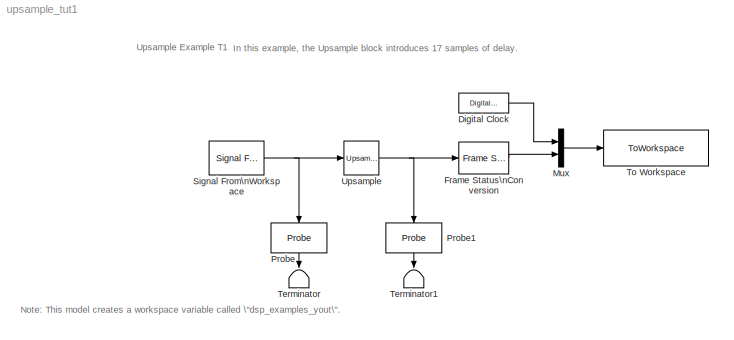
MODEL upsample_tut1
KIND model
CONFIG AbsTol = auto
CONFIG FixedStep = auto
CONFIG MaxStep = auto
CONFIG MinStep = auto
CONFIG RelTol = 1e-3
CONFIG Solver = FixedStepDiscrete
CONFIG SolverMode = SingleTasking
CONFIG StartTime = 0.0
CONFIG StopTime = 5
BLOCK [DigitalClock] Digital Clock
  SampleTime = 1/4
BLOCK [Reference] Frame Status\nConversion  REF=dspsigattribs/Frame Status\nConversion
  Ports = [1, 1]
  SourceBlock = dspsigattribs/Frame Status\nConversion
  SourceType = Frame Status Conversion
  growRefPort = off
  outframe = Sample-based
BLOCK [Mux] Mux
  DisplayOption = bar
  Inputs = 2
  Ports = [2, 1]
BLOCK [Probe] Probe
  Ports = [1, 1]
  ProbeComplexSignal = off
  ProbeWidth = off
BLOCK [Probe] Probe1
  Ports = [1, 1]
  ProbeComplexSignal = off
  ProbeWidth = off
BLOCK [Reference] Signal From\nWorkspace  REF=dspsrcs4/Signal From\nWorkspace
  OutputAfterFinalValue = Setting to zero
  Ports = [0, 1]
  SourceBlock = dspsrcs4/Signal From\nWorkspace
  SourceType = Signal From Workspace
  Ts = 1/4
  X = 1:100
  nsamps = 4
BLOCK [Terminator] Terminator
BLOCK [Terminator] Terminator1
BLOCK [ToWorkspace] To Workspace
  MaxDataPoints = inf
  SampleTime = -1
  SaveFormat = Array
  VariableName = dsp_examples_yout
BLOCK [Reference] Upsample  REF=dspsigops/Upsample
  N = 4
  Ports = [1, 1]
  SourceBlock = dspsigops/Upsample
  SourceType = Upsample
  ic = -1
  mode = Maintain input frame size
  phase = 0
ANNOTATION (root): In this example, the Upsample block introduces 17 samples of delay.
ANNOTATION (root): Note: This model creates a workspace variable called \"dsp_examples_yout\".
ANNOTATION (root): Upsample Example T1
LINE Digital Clock:1 -> Mux:1
LINE Frame Status\nConversion:1 -> Mux:2
LINE Mux:1 -> To Workspace:1
LINE Probe1:1 -> Terminator1:1
LINE Probe:1 -> Terminator:1
NET Signal From\nWorkspace:1 -> Probe:1, Upsample:1
NET Upsample:1 -> Frame Status\nConversion:1, Probe1:1
note: NET lines group one-source signal fan-out (src -> all destinations, sorted); 1:1 wires keep LINE
